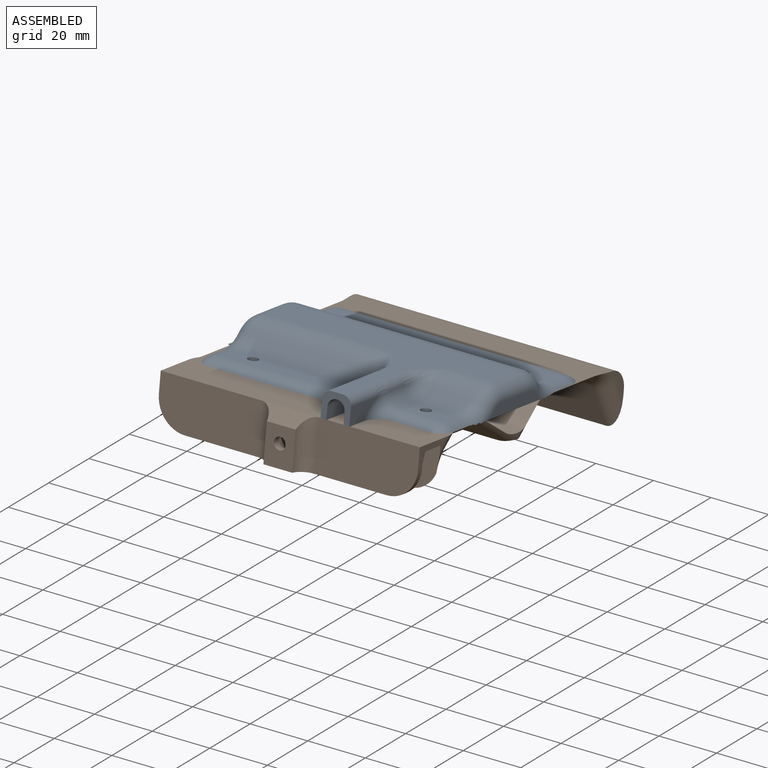
[diagram: assembled view]
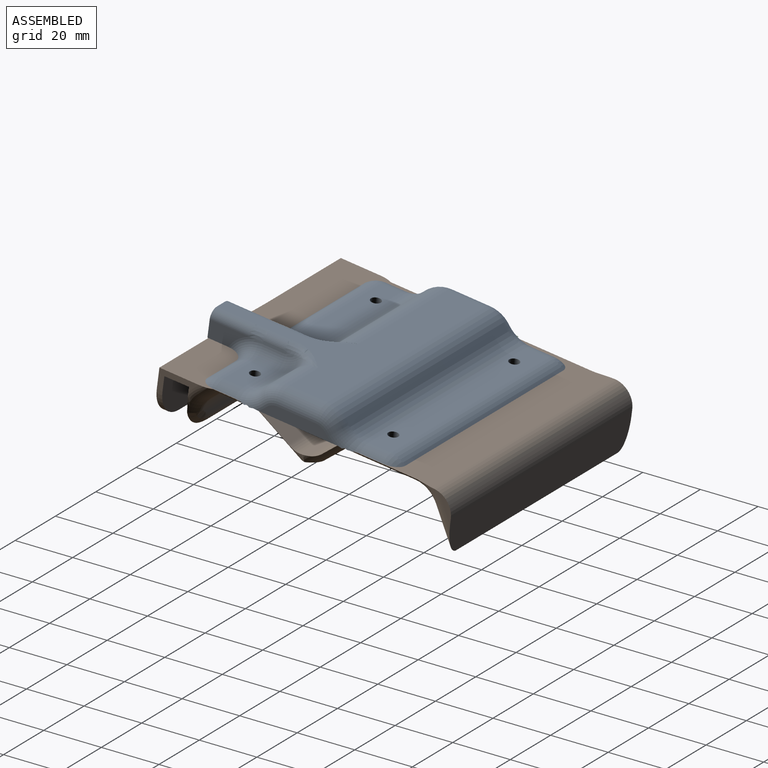
[diagram: assembled view, second angle]
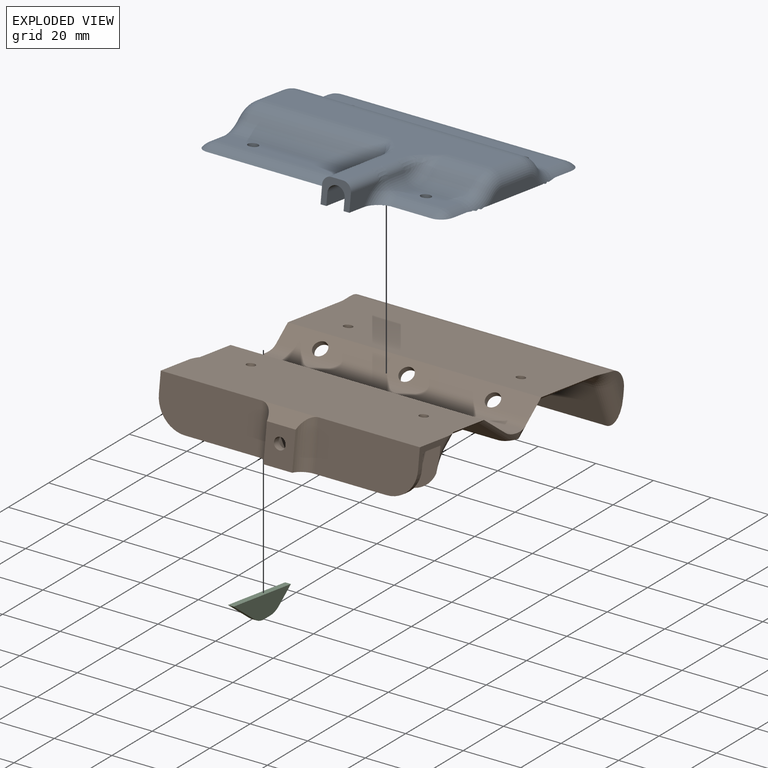
[diagram: exploded view]
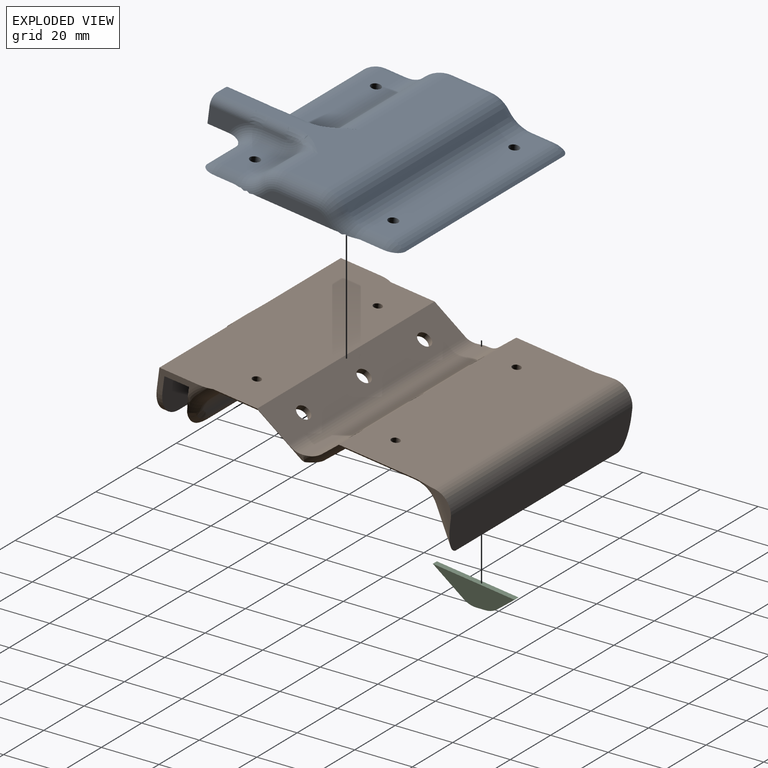
[diagram: exploded view, second angle]
ASSEMBLY  parts=3 mates=5
PART A: 77 faces, bbox 89.6x84.6x24.9 mm
  f0: plane 49.06x2.74mm, normal (0,0.82,-0.57), area 163.4mm2, adj f1,f17,f27,f57,f58
  f1: cylinder r=10mm len=56.9mm, axis (1,0,0), area 508.6mm2, adj f0,f7,f27,f56
  f2: plane 43.9x7.06mm, normal (0,0,1), area 300.4mm2, adj f3,f13,f23,f39,f66
  f3: cylinder r=8mm len=43.9mm, axis (1,0,0), area 253.8mm2, adj f2,f17,f38,f67
  f4: cylinder r=10mm len=14.1mm, axis (1,0,0), area 121.7mm2, adj f5,f20,f36,f74
  f5: cylinder r=10mm len=14.1mm, axis (1,0,0), area 121.7mm2, adj f4,f19,f37,f73
  f6: plane 19.26x2.74mm, normal (0,0.82,-0.57), area 63.9mm2, adj f9,f17,f28,f54,f55
  f7: plane 84x11.05mm, normal (0,0,-1), area 928.3mm2, adj f1,f9,f10,f27,f28
  f8: plane 84x2.74mm, normal (0,-0.82,-0.57), area 280.5mm2, adj f10,f17,f27,f28
  f9: cylinder r=10mm len=27.1mm, axis (1,0,0), area 222.5mm2, adj f6,f7,f28,f53
  f10: cylinder r=10mm len=84mm, axis (1,0,0), area 806.3mm2, adj f7,f8,f27,f28
  f11: plane 25.76x4mm, normal (-1,0,0), area 84.8mm2, adj f17,f61,f62,f63,f64,f65
  f12: plane 25.76x4mm, normal (1,0,0), area 84.8mm2, adj f17,f70,f71,f72,f73,f74
  f13: cylinder r=1.75mm len=3.5mm, axis (0,0,-1), area 22mm2, adj f2,f17
  f14: cylinder r=1.75mm len=3.5mm, axis (0,0,-1), area 22mm2, adj f17,f20
  f15: cylinder r=1.75mm len=3.5mm, axis (0,0,-1), area 22mm2, adj f17,f18
  f16: cylinder r=1.75mm len=3.5mm, axis (0,0,-1), area 22mm2, adj f17,f18
  f17: plane 89.62x84.62mm, normal (0,0,-1), area 3305.3mm2, adj f0,f3,f6,f8,f11,f12,f13,f14
  f18: plane 78x8.06mm, normal (0,0,1), area 609.5mm2, adj f15,f16,f22,f24,f60,f69
  f19: plane 78.76x55.2mm, normal (0,0,1), area 1281.2mm2, adj f5,f25,f26,f32,f42,f43,f44,f45
  f20: plane 14.1x7.06mm, normal (0,0,1), area 90mm2, adj f4,f14,f21,f35,f75
  f21: cylinder r=8mm len=14.1mm, axis (1,0,0), area 81.5mm2, adj f17,f20,f34,f76
  f22: cylinder r=8mm len=78mm, axis (1,0,0), area 451mm2, adj f17,f18,f59,f68
  f23: cylinder r=10mm len=43.9mm, axis (1,0,0), area 378.9mm2, adj f2,f25,f41,f65
  f24: cylinder r=10mm len=78mm, axis (-1,0,0), area 673.3mm2, adj f18,f26,f61,f70
  f25: cylinder r=10mm len=43.9mm, axis (1,0,0), area 378.9mm2, adj f19,f23,f40,f64
  f26: cylinder r=10mm len=78mm, axis (-1,0,0), area 673.3mm2, adj f19,f24,f62,f71
  f27: plane 31.27x7mm, normal (1,0,0), area 176.4mm2, adj f0,f1,f7,f8,f10,f17
  f28: plane 31.27x7mm, normal (-1,0,0), area 176.4mm2, adj f6,f7,f8,f9,f10,f17
  f29: plane 28.83x4mm, normal (1,0,0), area 109.7mm2, adj f17,f32,f52,f58
  f30: plane 28.83x4mm, normal (-1,0,0), area 109.7mm2, adj f17,f32,f52,f55
  f31: plane 13.83x6mm, normal (1,0,0), area 58.7mm2, adj f17,f32,f34,f47
  f32: plane 10x9mm, normal (0,-1,0), area 48mm2, adj f17,f19,f29,f30,f31,f33,f42,f47
  f33: plane 13.83x6mm, normal (-1,0,0), area 58.7mm2, adj f17,f32,f38,f42
  f34: torus R=13mm, axis (1,0,0), area 69.6mm2, adj f17,f21,f31,f35,f48
  f35: cylinder r=5mm len=7.06mm, axis (0,1,0), area 51mm2, adj f20,f34,f36,f49
  f36: torus R=5mm, axis (1,0,0), area 46.7mm2, adj f4,f35,f37,f50
  f37: torus R=15mm, axis (1,0,0), area 22.8mm2, adj f5,f36,f51
  f38: torus R=13mm, axis (1,0,0), area 69.6mm2, adj f3,f17,f33,f39,f43
  f39: cylinder r=5mm len=7.06mm, axis (0,-1,0), area 51mm2, adj f2,f38,f41,f44
  f40: torus R=15mm, axis (1,0,0), area 22.8mm2, adj f25,f41,f46
  f41: torus R=5mm, axis (1,0,0), area 46.7mm2, adj f23,f39,f40,f45
  f42: cylinder r=3mm len=13.83mm, axis (0,-1,0), area 65.2mm2, adj f19,f32,f33,f43
  f43: bspline ~9.64x3.45mm, area 22.3mm2, adj f19,f38,f42,f44
  f44: cylinder r=3mm len=7.06mm, axis (0,-1,0), area 30.6mm2, adj f19,f39,f43,f45
  f45: bspline ~9.49x4.23mm, area 26mm2, adj f19,f41,f44,f46
  f46: bspline ~10.24x7.23mm, area 19.9mm2, adj f19,f40,f45
  f47: cylinder r=3mm len=13.83mm, axis (0,1,0), area 65.2mm2, adj f19,f31,f32,f48
  f48: bspline ~9.64x3.45mm, area 22.3mm2, adj f19,f34,f47,f49
  f49: cylinder r=3mm len=7.06mm, axis (0,1,0), area 30.6mm2, adj f19,f35,f48,f50
  f50: bspline ~9.49x4.23mm, area 26mm2, adj f19,f36,f49,f51
  f51: bspline ~9.95x7.09mm, area 13mm2, adj f19,f37,f50
  f52: cylinder r=3mm len=42.24mm, axis (0,-1,0), area 332.1mm2, adj f29,f30,f32,f53,f54,f56,f57
  f53: bspline ~13.27x8.01mm, area 41.8mm2, adj f9,f52,f54
  f54: bspline ~5.22x5.06mm, area 11mm2, adj f6,f52,f53,f55
  f55: cylinder r=5mm len=6.9mm, axis (0,0.57,0.82), area 20.8mm2, adj f6,f17,f30,f54
  f56: bspline ~12.56x7.91mm, area 41.8mm2, adj f1,f52,f57
  f57: bspline ~5.22x5.06mm, area 11mm2, adj f0,f52,f56,f58
  f58: cylinder r=5mm len=6.9mm, axis (0,-0.57,-0.82), area 20.8mm2, adj f0,f17,f29,f57
  f59: torus R=3mm, axis (1,0,0), area 20.1mm2, adj f17,f22,f60
  f60: cylinder r=5mm len=8.06mm, axis (0,1,0), area 37.4mm2, adj f17,f18,f59,f61
  f61: torus R=15mm, axis (1,0,0), area 65.7mm2, adj f11,f17,f24,f60,f62
  f62: torus R=5mm, axis (1,0,0), area 55.5mm2, adj f11,f26,f61,f63
  f63: cylinder r=5mm len=13.36mm, axis (0,-1,0), area 104.9mm2, adj f11,f19,f62,f64
  f64: torus R=5mm, axis (1,0,0), area 55.5mm2, adj f11,f25,f63,f65
  f65: torus R=15mm, axis (1,0,0), area 65.7mm2, adj f11,f17,f23,f64,f66
  f66: cylinder r=5mm len=7.06mm, axis (0,-1,0), area 32.7mm2, adj f2,f17,f65,f67
  f67: torus R=3mm, axis (1,0,0), area 20.1mm2, adj f3,f17,f66
  f68: torus R=3mm, axis (1,0,0), area 20.1mm2, adj f17,f22,f69
  f69: cylinder r=5mm len=8.06mm, axis (0,-1,0), area 37.4mm2, adj f17,f18,f68,f70
  f70: torus R=15mm, axis (1,0,0), area 65.7mm2, adj f12,f17,f24,f69,f71
  f71: torus R=5mm, axis (1,0,0), area 55.5mm2, adj f12,f26,f70,f72
  f72: cylinder r=5mm len=13.36mm, axis (0,-1,0), area 104.9mm2, adj f12,f19,f71,f73
  f73: torus R=5mm, axis (1,0,0), area 55.5mm2, adj f5,f12,f72,f74
  f74: torus R=15mm, axis (1,0,0), area 65.7mm2, adj f4,f12,f17,f73,f75
  f75: cylinder r=5mm len=7.06mm, axis (0,1,0), area 32.7mm2, adj f17,f20,f74,f76
  f76: torus R=3mm, axis (1,0,0), area 20.1mm2, adj f17,f21,f75
PART B: 80 faces, bbox 93.6x115x30.9 mm
  f0: plane 13.93x7mm, normal (1,0,0), area 37mm2, adj f2,f5,f10,f11,f43,f47,f65,f67
  f1: plane 9.28x6.27mm, normal (-1,0,0), area 15.6mm2, adj f13,f33,f51,f52
  f2: plane 90.17x33.7mm, normal (0,0,1), area 2970.7mm2, adj f0,f4,f17,f31,f32,f43,f44,f45
  f3: plane 9.28x6.27mm, normal (1,0,0), area 15.6mm2, adj f13,f33,f53,f55
  f4: plane 13.93x7mm, normal (-1,0,0), area 37mm2, adj f2,f5,f10,f11,f44,f46,f62,f64
  f5: plane 90x15mm, normal (0,1,0), area 1264mm2, adj f0,f4,f9,f10,f36,f37,f38,f39
  f6: cylinder r=2.02mm len=4.05mm, axis (0,1,0), area 31.8mm2, adj f15,f42
  f7: plane 80x25.38mm, normal (0,0,-1), area 2016.4mm2, adj f19,f29,f30,f34,f54,f57
  f8: plane 80x14mm, normal (0,0,-1), area 1105.9mm2, adj f16,f31,f32,f35,f60,f63
  f9: plane 70x6mm, normal (0,0,-1), area 189.9mm2, adj f5,f15,f43,f44,f46,f47,f49,f50
  f10: plane 90x8.6mm, normal (0,0,-1), area 774mm2, adj f0,f4,f5,f11
  f11: plane 90.92x15.92mm, normal (0,-1,0), area 1304.6mm2, adj f0,f4,f10,f64,f66,f67,f68,f69
  f12: plane 75.05x0.59mm, normal (0,1,0), area 43.1mm2, adj f48,f68,f70,f71
  f13: plane 93.64x15.96mm, normal (0,1,0), area 1087.4mm2, adj f1,f3,f20,f33,f51,f53
  f14: plane 89.97x33.83mm, normal (0,0,1), area 2969.7mm2, adj f18,f29,f30,f33,f52,f54,f55,f57
  f15: plane 13x10mm, normal (0,-1,0), area 117.1mm2, adj f6,f9,f45,f49,f50
  f16: plane 80x14.69mm, normal (0,-0.5,-0.87), area 1298mm2, adj f8,f21,f23,f24,f25,f58,f61
  f17: plane 88x11.77mm, normal (0,0.5,0.87), area 1136.7mm2, adj f2,f23,f24,f25,f58,f61,f72
  f18: plane 88x5.27mm, normal (0,-0.71,0.71), area 596.5mm2, adj f14,f26,f27,f28,f56,f59,f73,f75
  f19: plane 80x7.45mm, normal (0,0.71,-0.71), area 783.4mm2, adj f7,f21,f26,f27,f28,f56,f59
  f20: plane 80x13.32mm, normal (0,-0.87,-0.5), area 1230.5mm2, adj f13,f34,f51,f53
  f21: plane 90.03x9.33mm, normal (0,0.13,-0.99), area 682.7mm2, adj f16,f19,f56,f58,f59,f61
  f22: plane 89.95x3.17mm, normal (0,-0.13,0.99), area 285.5mm2, adj f56,f58,f59,f61,f72,f73,f74,f75
  f23: cylinder r=2.5mm len=5.33mm, axis (0,0.5,0.87), area 31.4mm2, adj f16,f17
  f24: cylinder r=2.5mm len=5.33mm, axis (0,0.5,0.87), area 31.4mm2, adj f16,f17
  f25: cylinder r=2.5mm len=5.33mm, axis (0,0.5,0.87), area 31.4mm2, adj f16,f17
  f26: cylinder r=2.5mm len=5mm, axis (0,-0.71,0.71), area 31.4mm2, adj f18,f19,f76
  f27: cylinder r=2.5mm len=5mm, axis (0,-0.71,0.71), area 31.4mm2, adj f18,f19,f78
  f28: cylinder r=2.5mm len=5mm, axis (0,-0.71,0.71), area 31.4mm2, adj f18,f19,f74
  f29: cylinder r=1.5mm len=3mm, axis (0,0,1), area 18.8mm2, adj f7,f14
  f30: cylinder r=1.5mm len=3mm, axis (0,0,1), area 18.8mm2, adj f7,f14
  f31: cylinder r=1.5mm len=3mm, axis (0,0,1), area 18.8mm2, adj f2,f8
  f32: cylinder r=1.5mm len=3mm, axis (0,0,1), area 18.8mm2, adj f2,f8
  f33: cylinder r=7mm len=90mm, axis (-1,0,0), area 989.6mm2, adj f1,f3,f13,f14,f52,f55
  f34: cylinder r=8mm len=80mm, axis (1,0,0), area 670.2mm2, adj f7,f20,f52,f55
  f35: plane 80x3.07mm, normal (0,0.71,-0.71), area 347.5mm2, adj f8,f48,f62,f65
  f36: plane 3.53x3.5mm, normal (-0.87,0,-0.5), area 14.2mm2, adj f5,f37,f41,f42
  f37: plane 3.53x3.5mm, normal (-0.87,0,0.5), area 14.2mm2, adj f5,f36,f38,f42
  f38: plane 4.07x3.5mm, normal (0,0,1), area 14.2mm2, adj f5,f37,f39,f42
  f39: plane 3.53x3.5mm, normal (0.87,0,0.5), area 14.2mm2, adj f5,f38,f40,f42
  f40: plane 3.53x3.5mm, normal (0.87,0,-0.5), area 14.2mm2, adj f5,f39,f41,f42
  f41: plane 4.07x3.5mm, normal (0,0,-1), area 14.2mm2, adj f5,f36,f40,f42
  f42: plane 8.14x7.05mm, normal (0,1,0), area 30.2mm2, adj f6,f36,f37,f38,f39,f40,f41
  f43: plane 35.1x17mm, normal (0,-1,0), area 575.3mm2, adj f0,f2,f9,f47,f49
  f44: plane 35.1x17mm, normal (0,-1,0), area 575.3mm2, adj f2,f4,f9,f46,f50
  f45: plane 21.56x5.76mm, normal (0,-0.71,0.71), area 70.5mm2, adj f2,f15,f49,f50
  f46: cylinder r=10mm len=10mm, axis (0,1,0), area 31.4mm2, adj f4,f5,f9,f44
  f47: cylinder r=10mm len=10mm, axis (0,-1,0), area 31.4mm2, adj f0,f5,f9,f43
  f48: cylinder r=10mm len=80mm, axis (1,0,0), area 624mm2, adj f12,f35,f64,f66,f67,f69
  f49: cylinder r=5mm len=17mm, axis (0,0,1), area 102.7mm2, adj f9,f15,f43,f45
  f50: cylinder r=5mm len=17mm, axis (0,0,-1), area 102.7mm2, adj f9,f15,f44,f45
  f51: cylinder r=5mm len=15.82mm, axis (0,0.5,-0.87), area 86.8mm2, adj f1,f13,f20,f52
  f52: torus R=13mm, axis (1,0,0), area 62.9mm2, adj f1,f14,f33,f34,f51,f54
  f53: cylinder r=5mm len=15.82mm, axis (0,-0.5,0.87), area 86.8mm2, adj f3,f13,f20,f55
  f54: cylinder r=5mm len=26.21mm, axis (0,1,0), area 119.6mm2, adj f7,f14,f52,f56
  f55: torus R=13mm, axis (1,0,0), area 62.9mm2, adj f3,f14,f33,f34,f53,f57
  f56: cylinder r=5mm len=13.38mm, axis (0,0.71,0.71), area 65.8mm2, adj f18,f19,f21,f22,f54,f58,f79
  f57: cylinder r=5mm len=26.21mm, axis (0,-1,0), area 119.6mm2, adj f7,f14,f55,f59
  f58: cylinder r=5mm len=20.09mm, axis (0,0.87,-0.5), area 95mm2, adj f16,f17,f21,f22,f56,f60,f72
  f59: cylinder r=5mm len=13.38mm, axis (0,-0.71,-0.71), area 65.8mm2, adj f18,f19,f21,f22,f57,f61,f73
  f60: cylinder r=5mm len=15.36mm, axis (0,1,0), area 68.1mm2, adj f2,f8,f58,f62
  f61: cylinder r=5mm len=20.09mm, axis (0,-0.87,0.5), area 95mm2, adj f16,f17,f21,f22,f59,f63,f72
  f62: cylinder r=5mm len=7.19mm, axis (0,-0.71,-0.71), area 33.9mm2, adj f2,f4,f35,f60,f64
  f63: cylinder r=5mm len=15.36mm, axis (0,-1,0), area 68.1mm2, adj f2,f8,f61,f65
  f64: torus R=15mm, axis (1,0,0), area 51.2mm2, adj f4,f11,f48,f62,f66
  f65: cylinder r=5mm len=7.19mm, axis (0,-0.71,-0.71), area 33.9mm2, adj f0,f2,f35,f63,f67
  f66: bspline ~7.33x6.41mm, area 26.1mm2, adj f11,f48,f64,f68
  f67: torus R=15mm, axis (1,0,0), area 51.2mm2, adj f0,f11,f48,f65,f69
  f68: torus R=5.73mm, axis (0,-1,0), area 18.9mm2, adj f11,f12,f66,f70
  f69: bspline ~7.65x6.67mm, area 26.1mm2, adj f11,f48,f67,f71
  f70: cylinder r=5mm len=70mm, axis (1,0,0), area 358.4mm2, adj f11,f12,f68,f71
  f71: torus R=5.73mm, axis (0,-1,0), area 18.9mm2, adj f11,f12,f69,f70
  f72: cylinder r=7mm len=89.51mm, axis (-1,0,0), area 406.6mm2, adj f17,f22,f58,f61
  f73: cylinder r=7mm len=14.24mm, axis (1,0,0), area 63.5mm2, adj f18,f22,f59,f74
  f74: bspline ~4.31x2.61mm, area 4.7mm2, adj f22,f28,f73,f75
  f75: cylinder r=7mm len=28.97mm, axis (1,0,0), area 132.7mm2, adj f18,f22,f74,f76
  f76: bspline ~4.31x2.61mm, area 4.7mm2, adj f22,f26,f75,f77
  f77: cylinder r=7mm len=28.97mm, axis (1,0,0), area 132.7mm2, adj f18,f22,f76,f78
  f78: bspline ~4.31x2.61mm, area 4.7mm2, adj f22,f27,f77,f79
  f79: cylinder r=7mm len=14.24mm, axis (1,0,0), area 63.5mm2, adj f18,f22,f56,f78
PART C: 8 faces, bbox 2x28.6x7.7 mm
  f0: plane 28.64x2mm, normal (0,0,1), area 57.3mm2, adj f1,f5,f6,f7
  f1: plane 11.77x6.79mm, normal (0,-0.5,-0.87), area 27.2mm2, adj f0,f2,f6,f7
  f2: cylinder r=7mm len=4.41mm, axis (-1,0,0), area 9.2mm2, adj f1,f3,f6,f7
  f3: plane 3.15x2mm, normal (0,0.13,-0.99), area 6.4mm2, adj f2,f4,f6,f7
  f4: cylinder r=7mm len=4.04mm, axis (-1,0,0), area 9.2mm2, adj f3,f5,f6,f7
  f5: plane 5.27x5.27mm, normal (0,0.71,-0.71), area 14.9mm2, adj f0,f4,f6,f7
  f6: plane 28.64x7.73mm, normal (1,0,0), area 136.8mm2, adj f0,f1,f2,f3,f4,f5
  f7: plane 28.64x7.73mm, normal (-1,0,0), area 136.8mm2, adj f0,f1,f2,f3,f4,f5
PLACE A rot(axis=(-1,0,0),7.5deg) t=(43.34,37.85,48.39)mm
PLACE B rot(axis=(-1,0,0),7.5deg) t=(3.58,-1.14,40.41)mm
PLACE C rot(axis=(-1,0,0),7.5deg) t=(3.58,20.34,52.87)mm
MATE planar A.f17 <-> B.f2  axis (0,-0.13,-0.99) through (49.16,35.69,48.68)mm
MATE parallel A.f11 <-> B.f4  axis (-1,0,0) through (5.42,34.95,50.64)mm
MATE parallel A.f32 <-> B.f43  axis (0,-0.99,0.13) through (61.32,-12.39,57.02)mm
MATE planar C.f0 <-> A.f17  axis (0,0.13,0.99) through (4.58,35.21,48.74)mm
MATE planar C.f7 <-> B.f4  axis (-1,0,0) through (3.58,49.4,46.87)mm
